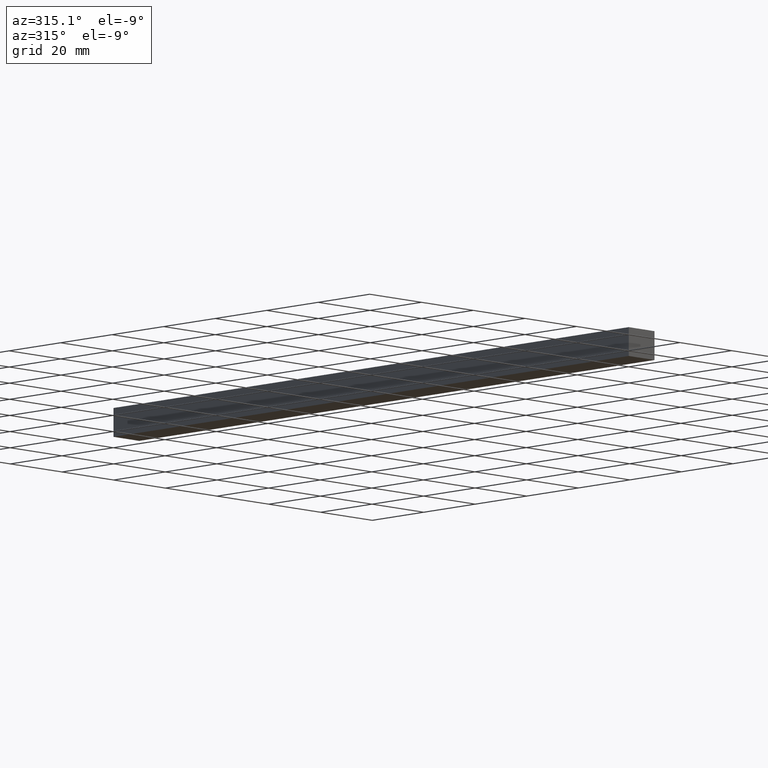
[diagram: clean part render]
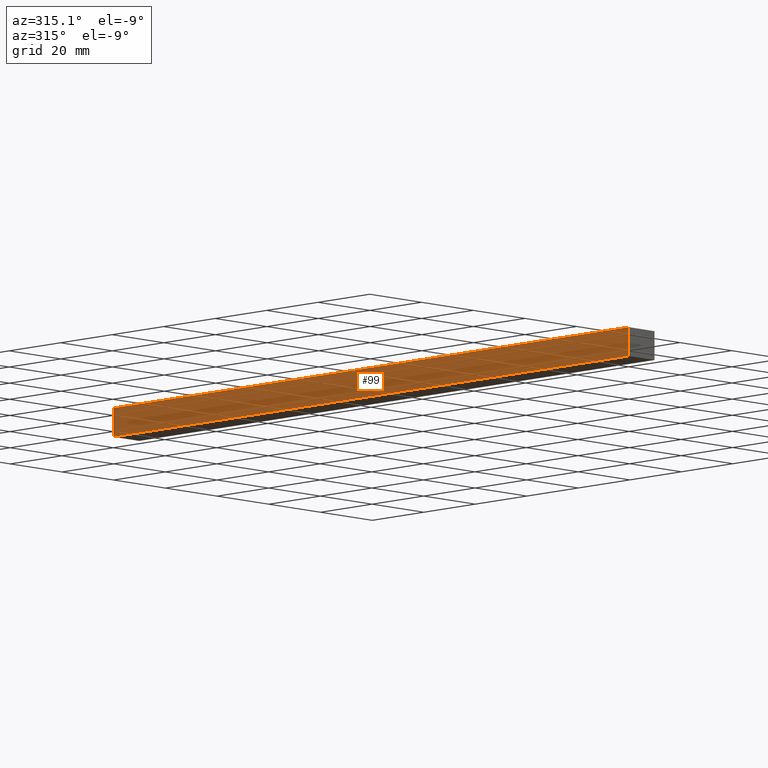
[diagram: same view with one face highlighted and labeled with its STEP entity id]
A machine part, auxiliary view. The second image highlights one B-rep face of the part: STEP entity #99.
In plain terms, the highlighted planar face has unit normal (-1, 0, 0).
Its self-contained STEP definition (entity closure, byte-faithful):
#1 = LINE ( 'NONE', #70, #208 ) ;
#3 = ORIENTED_EDGE ( 'NONE', *, *, #96, .T. ) ;
#11 = CARTESIAN_POINT ( 'NONE',  ( 0.0000000000000000000, 0.0000000000000000000, 0.0000000000000000000 ) ) ;
#12 = CARTESIAN_POINT ( 'NONE',  ( 0.0000000000000000000, 1000.000000000000000, 8.000000000000000000 ) ) ;
#17 = CARTESIAN_POINT ( 'NONE',  ( 0.0000000000000000000, 200.0000000000000000, 0.0000000000000000000 ) ) ;
#31 = CARTESIAN_POINT ( 'NONE',  ( 0.0000000000000000000, 200.0000000000000000, 0.0000000000000000000 ) ) ;
#32 = DIRECTION ( 'NONE',  ( 0.0000000000000000000, -1.000000000000000000, 0.0000000000000000000 ) ) ;
#40 = VERTEX_POINT ( 'NONE', #151 ) ;
#49 = EDGE_CURVE ( 'NONE', #40, #143, #54, .T. ) ;
#54 = LINE ( 'NONE', #120, #66 ) ;
#59 = FACE_OUTER_BOUND ( 'NONE', #209, .T. ) ;
#63 = VECTOR ( 'NONE', #32, 1000.000000000000000 ) ;
#66 = VECTOR ( 'NONE', #118, 1000.000000000000000 ) ;
#67 = DIRECTION ( 'NONE',  ( -0.0000000000000000000, -0.0000000000000000000, -1.000000000000000000 ) ) ;
#70 = CARTESIAN_POINT ( 'NONE',  ( 0.0000000000000000000, 1000.000000000000000, 0.0000000000000000000 ) ) ;
#71 = DIRECTION ( 'NONE',  ( 0.0000000000000000000, 0.0000000000000000000, 1.000000000000000000 ) ) ;
#82 = LINE ( 'NONE', #31, #115 ) ;
#85 = DIRECTION ( 'NONE',  ( 0.0000000000000000000, -1.000000000000000000, 0.0000000000000000000 ) ) ;
#91 = VERTEX_POINT ( 'NONE', #123 ) ;
#96 = EDGE_CURVE ( 'NONE', #190, #143, #1, .T. ) ;
#99 = ADVANCED_FACE ( 'NONE', ( #59 ), #105, .T. ) ;
#101 = ORIENTED_EDGE ( 'NONE', *, *, #224, .F. ) ;
#105 = PLANE ( 'NONE',  #206 ) ;
#112 = LINE ( 'NONE', #231, #63 ) ;
#115 = VECTOR ( 'NONE', #67, 1000.000000000000000 ) ;
#118 = DIRECTION ( 'NONE',  ( -0.0000000000000000000, -0.0000000000000000000, -1.000000000000000000 ) ) ;
#120 = CARTESIAN_POINT ( 'NONE',  ( 0.0000000000000000000, 0.0000000000000000000, 0.0000000000000000000 ) ) ;
#123 = CARTESIAN_POINT ( 'NONE',  ( 0.0000000000000000000, 200.0000000000000000, 8.000000000000000000 ) ) ;
#143 = VERTEX_POINT ( 'NONE', #11 ) ;
#144 = ORIENTED_EDGE ( 'NONE', *, *, #49, .F. ) ;
#146 = EDGE_CURVE ( 'NONE', #91, #190, #82, .T. ) ;
#151 = CARTESIAN_POINT ( 'NONE',  ( 0.0000000000000000000, 0.0000000000000000000, 8.000000000000000000 ) ) ;
#155 = ORIENTED_EDGE ( 'NONE', *, *, #146, .T. ) ;
#190 = VERTEX_POINT ( 'NONE', #17 ) ;
#206 = AXIS2_PLACEMENT_3D ( 'NONE', #12, #230, #71 ) ;
#208 = VECTOR ( 'NONE', #85, 1000.000000000000000 ) ;
#209 = EDGE_LOOP ( 'NONE', ( #144, #101, #155, #3 ) ) ;
#224 = EDGE_CURVE ( 'NONE', #91, #40, #112, .T. ) ;
#230 = DIRECTION ( 'NONE',  ( -1.000000000000000000, 0.0000000000000000000, 0.0000000000000000000 ) ) ;
#231 = CARTESIAN_POINT ( 'NONE',  ( 0.0000000000000000000, 1000.000000000000000, 8.000000000000000000 ) ) ;